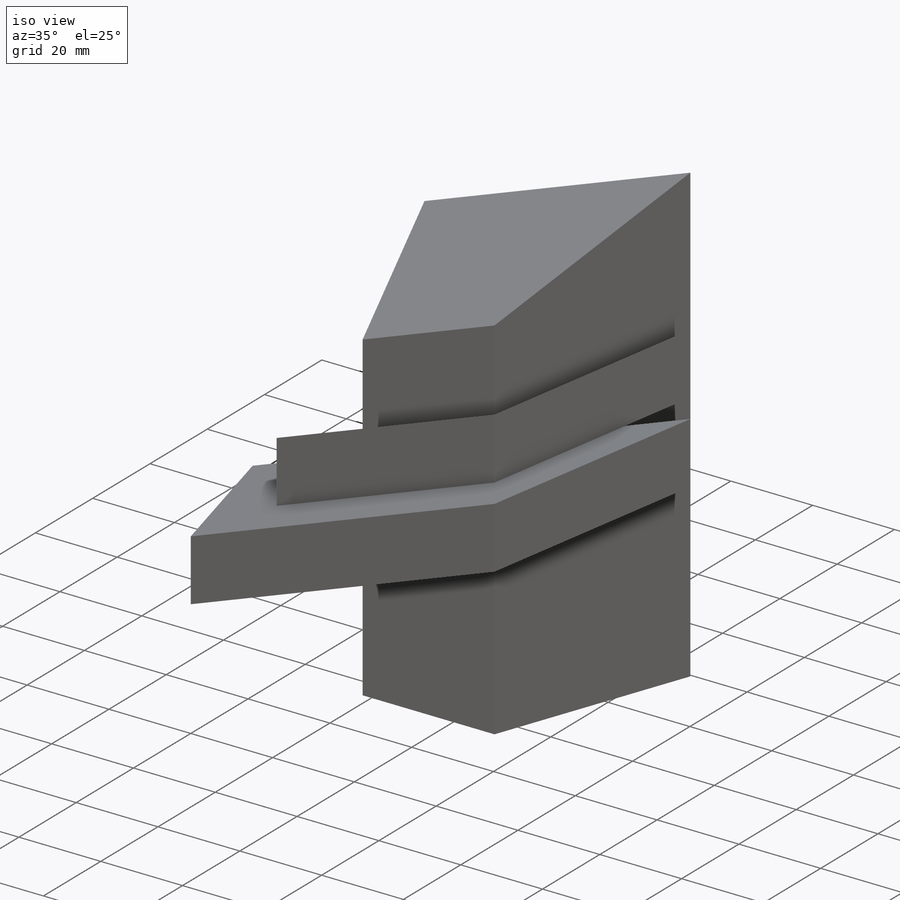
[diagram: iso view]
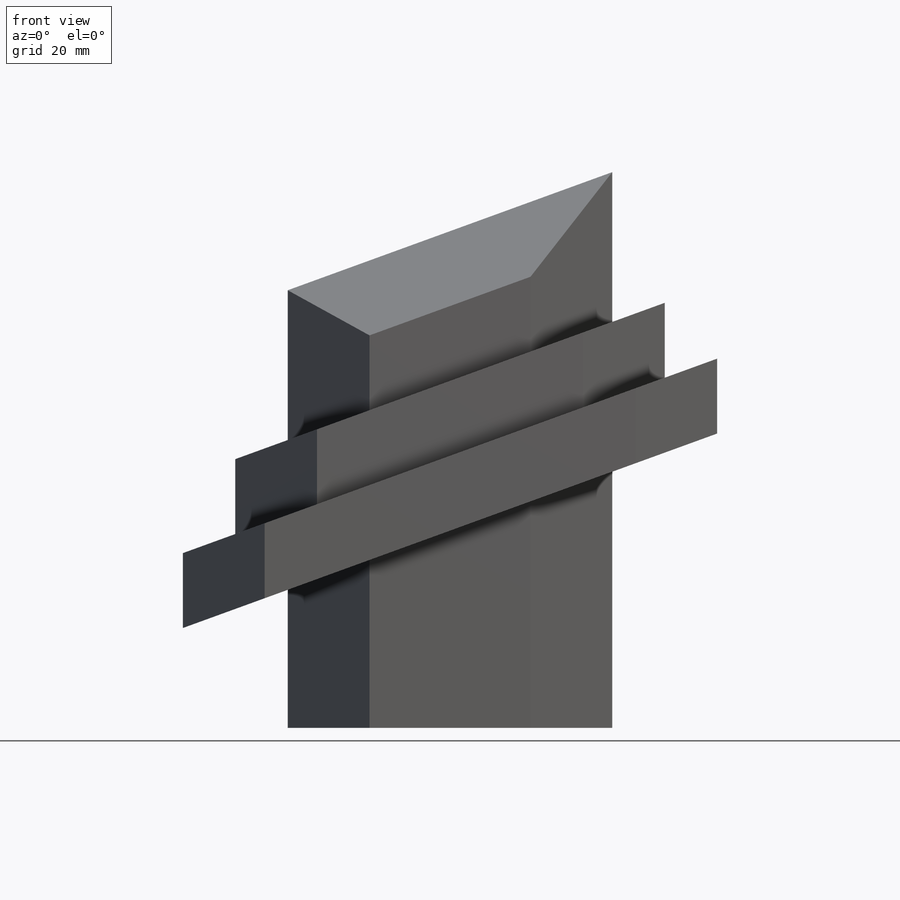
[diagram: front view]
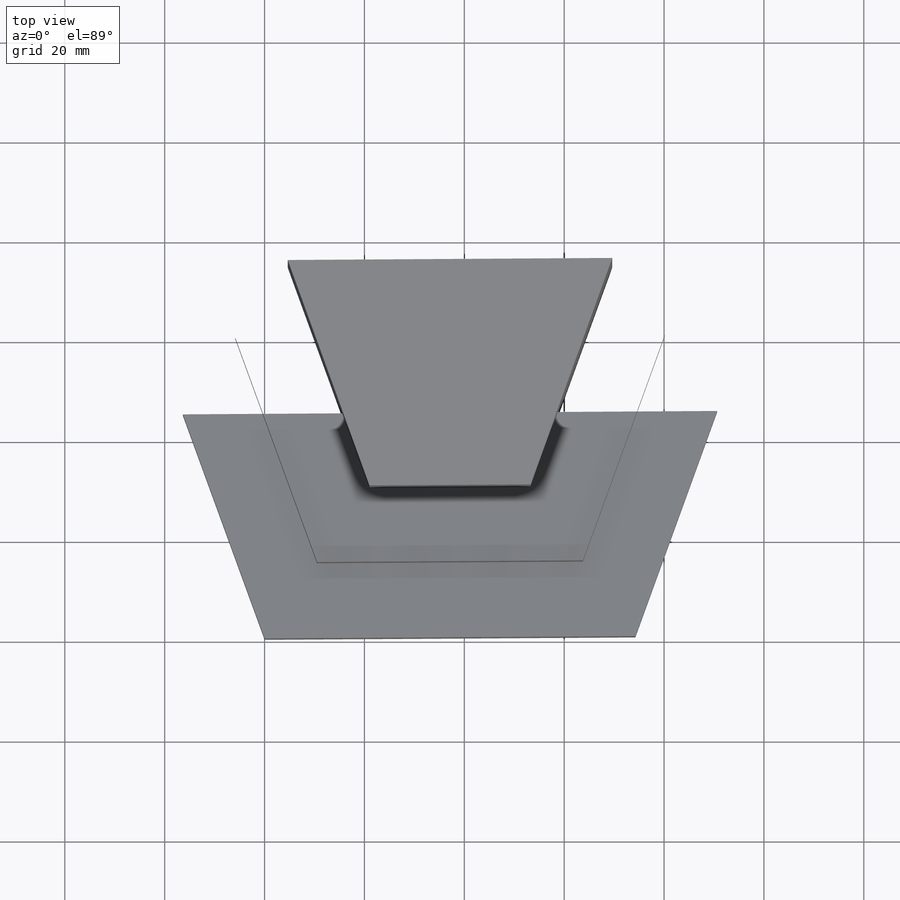
[diagram: top view]
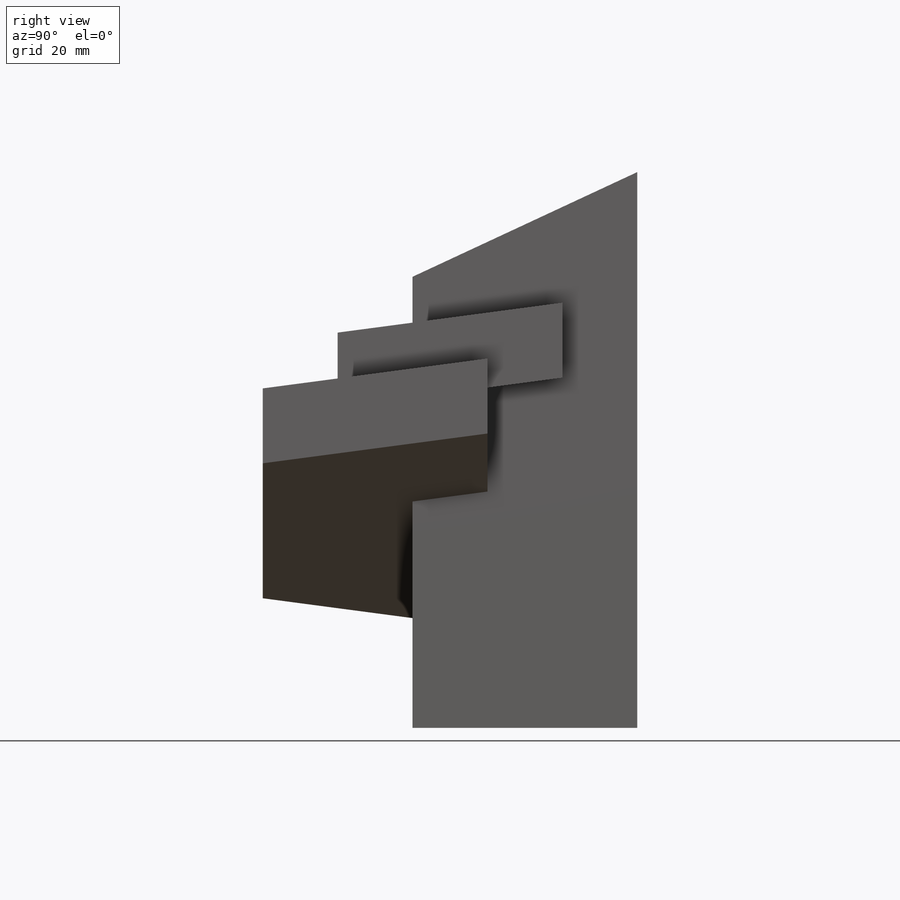
[diagram: right view]
SOLIDWORKS PART (.sldprt)
format: sldprt  version: not decoded by parser v0  size: 386,048 bytes
history: native  units: mm
features: sketch x10, cut_extrude x6, plane x5, extrude x3, material x1 (+14 scaffold rows collapsed)
feature tree (39):
  scaffold x14  (default folders/planes/origin — collapsed)
  material  "Material <not specified>"
  sketch  "Sketch1"
  extrude  "Extrude1"  Depth=111.303706mm
  sketch  "Sketch2"  dims[c1.D1=65.0mm c2.D1=20.0deg]
  cut_extrude  "Cut-Extrude1"  [1 undecoded]
  sketch  "Sketch3"  dims[c1.D1=15.0mm c1.D2=15.0mm c1.D3=15.0mm c1.D4=15.0mm c2.D2=15.0mm c2.D3=15.0mm c2.D5=~69.171555mm]
  plane  "Plane1"
  sketch  "Sketch4"
  cut_extrude  "Cut-Extrude2"  Depth=111.303706mm
  plane  "Plane2"
  plane  "Plane3"
  sketch  "Sketch6"  dims[c1.D1=30.0mm c1.D2=45.0mm c1.D3=15.0mm c1.D4=15.0mm c1.D5=15.0mm c1.D6=15.0mm c2.D1=15.0mm c2.D2=30.0mm c2.D3=65.0mm c3.D2=30.0mm]
  plane  "Plane4"
  extrude  "Extrude2"  Depth=111.303706mm
  sketch  "Sketch11"
  cut_extrude  "Cut-Extrude3"  Depth=60mm
  sketch  "Sketch12"
  cut_extrude  "Cut-Extrude4"  Depth=80mm
  plane  "Plane5"
  sketch  "Sketch13"  dims[D1=15.0mm D2=15.0mm D3=15.0mm D4=15.0mm]
  extrude  "Extrude3"  Depth=90mm
  sketch  "Sketch14"
  cut_extrude  "Cut-Extrude5"  Depth=40mm
  sketch  "Sketch15"
  cut_extrude  "Cut-Extrude6"  Depth=70mm
decode coverage: 12 of 19 modeling features carry decoded parameters
note: ~ marks probable driven/reference dimensions
note: 1 parameter value undecoded
note: suppression state not decoded; provenance and decode notes live in map.json
